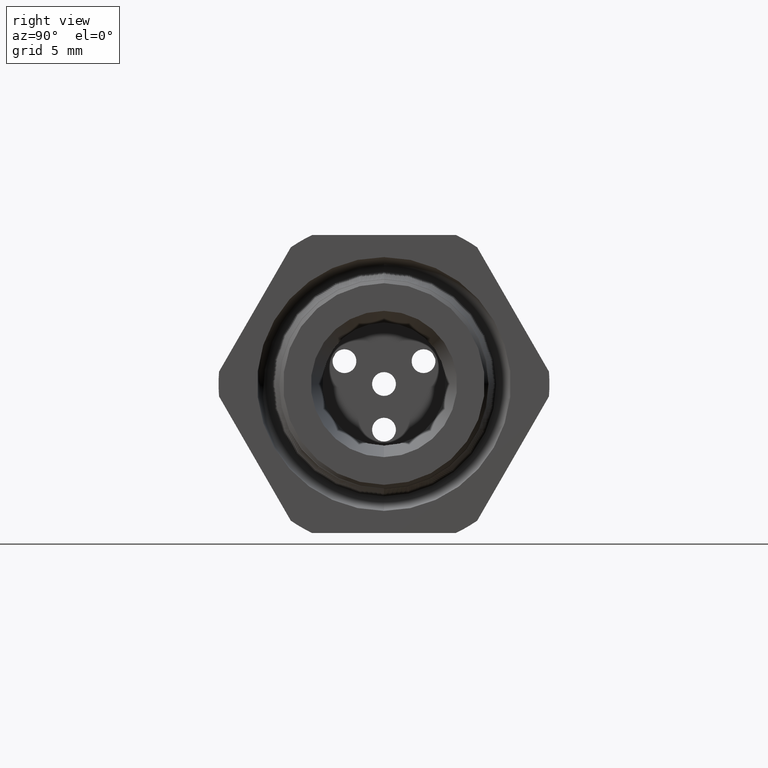
[diagram: clean part render]
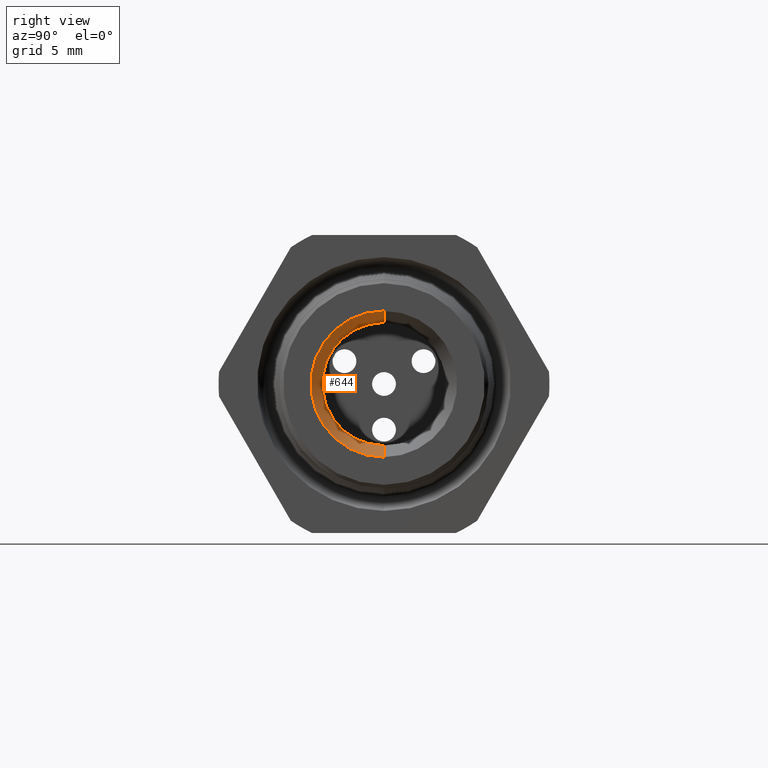
[diagram: same view with one face highlighted and labeled with its STEP entity id]
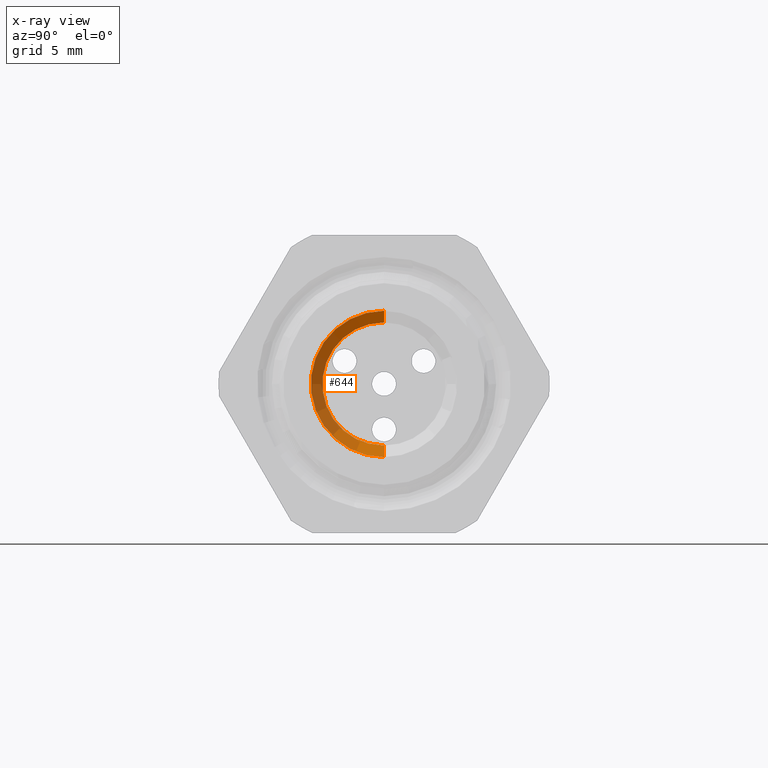
[diagram: x-ray of the same camera — body ghosted, the highlighted face saturated]
A machine part, right view. The second image highlights one B-rep face of the part: STEP entity #644.
The next image is the same camera in x-ray: the body ghosted, the highlighted face saturated — about 0% of this face is hidden behind the body in this view.
In plain terms, the highlighted conical surface has half-angle 1.611 deg.
Its self-contained STEP definition (entity closure, byte-faithful):
#644 = ADVANCED_FACE ( 'NONE', ( #3187 ), #3186, .F. ) ;
#645 = EDGE_LOOP ( 'NONE', ( #646, #650, #653, #711 ) ) ;
#646 = ORIENTED_EDGE ( 'NONE', *, *, #647, .F. ) ;
#647 = EDGE_CURVE ( 'NONE', #648, #649, #3245, .T. ) ;
#648 = VERTEX_POINT ( 'NONE', #3241 ) ;
#649 = VERTEX_POINT ( 'NONE', #3240 ) ;
#650 = ORIENTED_EDGE ( 'NONE', *, *, #651, .T. ) ;
#651 = EDGE_CURVE ( 'NONE', #648, #652, #3239, .T. ) ;
#652 = VERTEX_POINT ( 'NONE', #3235 ) ;
#653 = ORIENTED_EDGE ( 'NONE', *, *, #654, .T. ) ;
#654 = EDGE_CURVE ( 'NONE', #652, #655, #3234, .T. ) ;
#655 = VERTEX_POINT ( 'NONE', #3229 ) ;
#711 = ORIENTED_EDGE ( 'NONE', *, *, #712, .F. ) ;
#712 = EDGE_CURVE ( 'NONE', #649, #655, #3324, .T. ) ;
#3183 = CARTESIAN_POINT ( 'NONE',  ( -0.7508661417322833900, 0.0000000000000000000, 0.0000000000000000000 ) ) ;
#3184 = AXIS2_PLACEMENT_3D ( 'NONE', #3183, #3247, #3246 ) ;
#3185 = CARTESIAN_POINT ( 'NONE',  ( -0.7508661417322833900, 0.0000000000000000000, 0.0000000000000000000 ) ) ;
#3186 = CONICAL_SURFACE ( 'NONE', #3184, 0.1550000000000000000, 0.02812558522312232800 ) ;
#3187 = FACE_OUTER_BOUND ( 'NONE', #645, .T. ) ;
#3229 = CARTESIAN_POINT ( 'NONE',  ( 0.2800000000000000300, 0.0000000000000000000, -0.1840013610877269400 ) ) ;
#3230 = DIRECTION ( 'NONE',  ( 0.0000000000000000000, 0.0000000000000000000, -1.000000000000000000 ) ) ;
#3231 = DIRECTION ( 'NONE',  ( 1.000000000000000000, 0.0000000000000000000, 0.0000000000000000000 ) ) ;
#3232 = CARTESIAN_POINT ( 'NONE',  ( 0.2800000000000000300, 0.0000000000000000000, 0.0000000000000000000 ) ) ;
#3233 = AXIS2_PLACEMENT_3D ( 'NONE', #3232, #3231, #3230 ) ;
#3234 = CIRCLE ( 'NONE', #3233, 0.1840013610877269400 ) ;
#3235 = CARTESIAN_POINT ( 'NONE',  ( 0.2800000000000000300, 2.253366778948411600E-017, 0.1840013610877269400 ) ) ;
#3236 = DIRECTION ( 'NONE',  ( 0.9996045018004825500, 3.443936696338352400E-018, 0.02812187725257727500 ) ) ;
#3237 = VECTOR ( 'NONE', #3236, 39.37007874015748900 ) ;
#3238 = CARTESIAN_POINT ( 'NONE',  ( -0.7508661417322833900, 1.898202538678397300E-017, 0.1550000000000000000 ) ) ;
#3239 = LINE ( 'NONE', #3238, #3237 ) ;
#3240 = CARTESIAN_POINT ( 'NONE',  ( -0.7508661417322833900, 0.0000000000000000000, -0.1550000000000000000 ) ) ;
#3241 = CARTESIAN_POINT ( 'NONE',  ( -0.7508661417322833900, 1.898202538678397300E-017, 0.1550000000000000000 ) ) ;
#3242 = DIRECTION ( 'NONE',  ( 0.0000000000000000000, 0.0000000000000000000, -1.000000000000000000 ) ) ;
#3243 = DIRECTION ( 'NONE',  ( 1.000000000000000000, 0.0000000000000000000, 0.0000000000000000000 ) ) ;
#3244 = AXIS2_PLACEMENT_3D ( 'NONE', #3185, #3243, #3242 ) ;
#3245 = CIRCLE ( 'NONE', #3244, 0.1550000000000000000 ) ;
#3246 = DIRECTION ( 'NONE',  ( 0.0000000000000000000, 0.0000000000000000000, -1.000000000000000000 ) ) ;
#3247 = DIRECTION ( 'NONE',  ( 1.000000000000000000, 0.0000000000000000000, 0.0000000000000000000 ) ) ;
#3321 = DIRECTION ( 'NONE',  ( 0.9996045018004825500, 0.0000000000000000000, -0.02812187725257727500 ) ) ;
#3322 = VECTOR ( 'NONE', #3321, 39.37007874015748900 ) ;
#3323 = CARTESIAN_POINT ( 'NONE',  ( -0.7508661417322833900, 0.0000000000000000000, -0.1550000000000000000 ) ) ;
#3324 = LINE ( 'NONE', #3323, #3322 ) ;